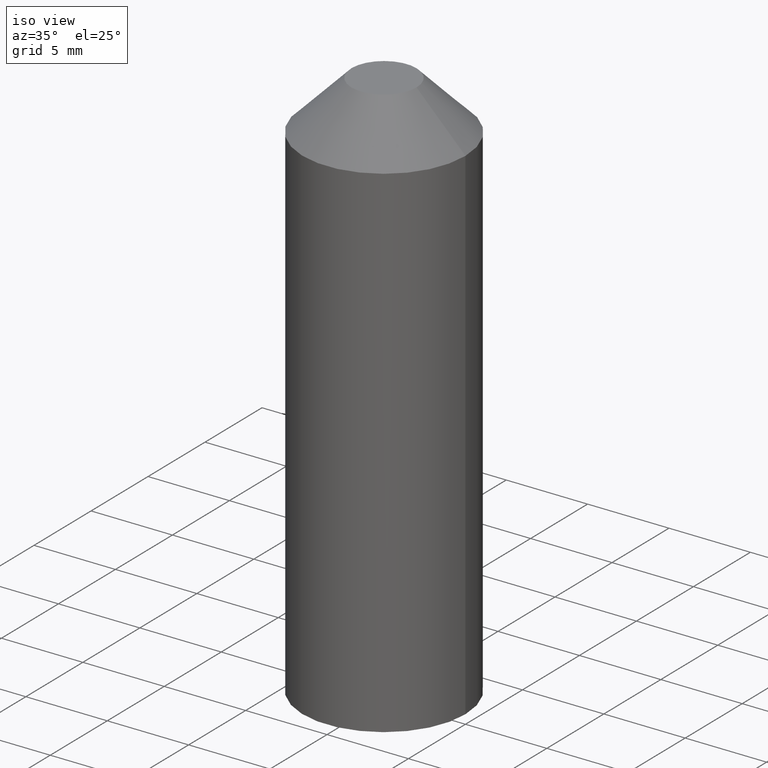
[diagram: clean part render]
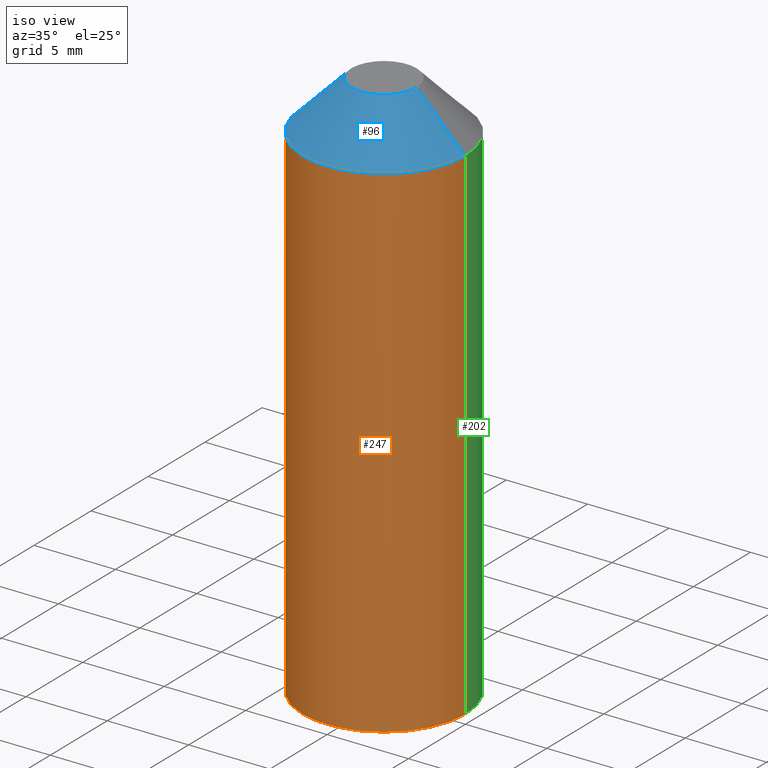
[diagram: same view with three faces highlighted in distinct colors, each labeled with its STEP entity id]
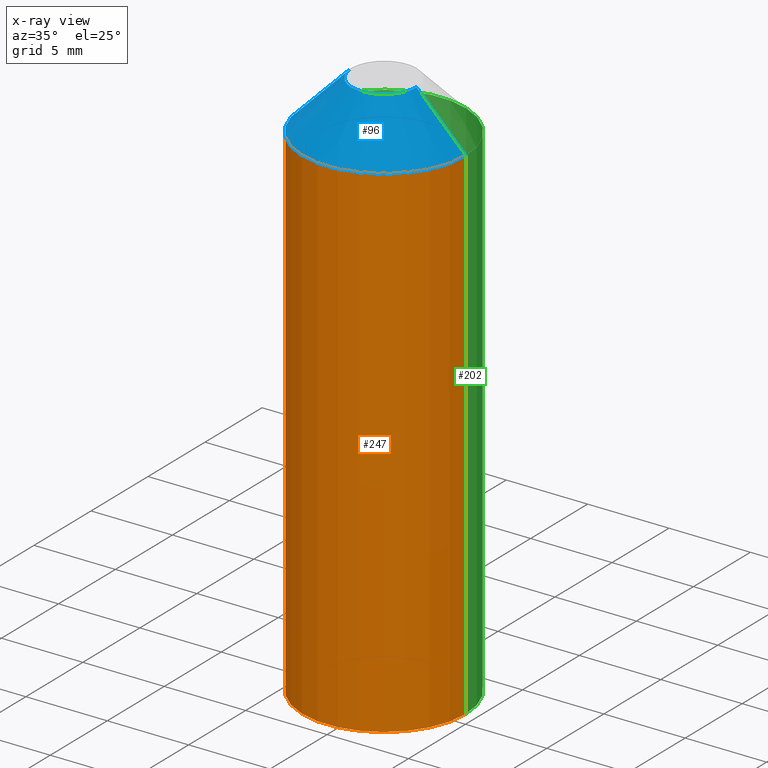
[diagram: x-ray of the same camera — body ghosted, the three highlighted faces saturated]
A machine part, iso view with three faces highlighted in distinct colors.
The next image is the same camera in x-ray (body ghosted, the three faces saturated) — at least one of them is partly hidden behind the body in this view.
Their STEP definitions:

[orange] entity #247 — the highlighted cylindrical surface (partial cylindrical patch) has radius 5 mm, axis along (0, 0, 1).
#1 = ORIENTED_EDGE ( 'NONE', *, *, #175, .F. ) ;
#2 = EDGE_CURVE ( 'NONE', #95, #160, #85, .T. ) ;
#15 = ORIENTED_EDGE ( 'NONE', *, *, #169, .T. ) ;
#18 = VECTOR ( 'NONE', #114, 1000.000000000000000 ) ;
#19 = CYLINDRICAL_SURFACE ( 'NONE', #148, 4.999999999999900500 ) ;
#24 = DIRECTION ( 'NONE',  ( 1.000000000000000000, 0.0000000000000000000, 0.0000000000000000000 ) ) ;
#25 = CIRCLE ( 'NONE', #164, 4.999999999999900500 ) ;
#26 = LINE ( 'NONE', #161, #18 ) ;
#33 = EDGE_CURVE ( 'NONE', #68, #160, #25, .T. ) ;
#40 = CARTESIAN_POINT ( 'NONE',  ( -4.999999999999801000, 6.123233995736644000E-016, -30.00000000000000000 ) ) ;
#59 = CARTESIAN_POINT ( 'NONE',  ( 5.000000000000000000, 0.0000000000000000000, -30.00000000000000000 ) ) ;
#64 = CARTESIAN_POINT ( 'NONE',  ( 5.000000000000000000, 0.0000000000000000000, 1.000000000000285300 ) ) ;
#68 = VERTEX_POINT ( 'NONE', #118 ) ;
#76 = CARTESIAN_POINT ( 'NONE',  ( 9.947598300641398800E-014, 0.0000000000000000000, -30.00000000000000000 ) ) ;
#80 = VECTOR ( 'NONE', #217, 1000.000000000000000 ) ;
#85 = LINE ( 'NONE', #59, #80 ) ;
#92 = CIRCLE ( 'NONE', #273, 4.999999999999900500 ) ;
#95 = VERTEX_POINT ( 'NONE', #302 ) ;
#114 = DIRECTION ( 'NONE',  ( 0.0000000000000000000, 0.0000000000000000000, 1.000000000000000000 ) ) ;
#118 = CARTESIAN_POINT ( 'NONE',  ( -4.999999999999801000, 6.123233995736644000E-016, 1.000000000000285300 ) ) ;
#133 = DIRECTION ( 'NONE',  ( 0.0000000000000000000, 0.0000000000000000000, 1.000000000000000000 ) ) ;
#139 = EDGE_LOOP ( 'NONE', ( #1, #15, #269, #280 ) ) ;
#148 = AXIS2_PLACEMENT_3D ( 'NONE', #76, #300, #210 ) ;
#160 = VERTEX_POINT ( 'NONE', #64 ) ;
#161 = CARTESIAN_POINT ( 'NONE',  ( -4.999999999999801000, 6.123233995736644000E-016, -30.00000000000000000 ) ) ;
#164 = AXIS2_PLACEMENT_3D ( 'NONE', #183, #194, #24 ) ;
#169 = EDGE_CURVE ( 'NONE', #214, #95, #92, .T. ) ;
#175 = EDGE_CURVE ( 'NONE', #214, #68, #26, .T. ) ;
#180 = FACE_OUTER_BOUND ( 'NONE', #139, .T. ) ;
#183 = CARTESIAN_POINT ( 'NONE',  ( 9.947598300641398800E-014, 0.0000000000000000000, 1.000000000000285300 ) ) ;
#194 = DIRECTION ( 'NONE',  ( 0.0000000000000000000, 0.0000000000000000000, 1.000000000000000000 ) ) ;
#210 = DIRECTION ( 'NONE',  ( 1.000000000000000000, 0.0000000000000000000, 0.0000000000000000000 ) ) ;
#214 = VERTEX_POINT ( 'NONE', #40 ) ;
#217 = DIRECTION ( 'NONE',  ( 0.0000000000000000000, 0.0000000000000000000, 1.000000000000000000 ) ) ;
#247 = ADVANCED_FACE ( 'NONE', ( #180 ), #19, .T. ) ;
#269 = ORIENTED_EDGE ( 'NONE', *, *, #2, .T. ) ;
#273 = AXIS2_PLACEMENT_3D ( 'NONE', #298, #133, #277 ) ;
#277 = DIRECTION ( 'NONE',  ( 1.000000000000000000, 0.0000000000000000000, 0.0000000000000000000 ) ) ;
#280 = ORIENTED_EDGE ( 'NONE', *, *, #33, .F. ) ;
#298 = CARTESIAN_POINT ( 'NONE',  ( 9.947598300641398800E-014, 0.0000000000000000000, -30.00000000000000000 ) ) ;
#300 = DIRECTION ( 'NONE',  ( 0.0000000000000000000, 0.0000000000000000000, 1.000000000000000000 ) ) ;
#302 = CARTESIAN_POINT ( 'NONE',  ( 5.000000000000000000, 0.0000000000000000000, -30.00000000000000000 ) ) ;

[blue] entity #96 — the highlighted conical surface has half-angle 45 deg.
#10 = CARTESIAN_POINT ( 'NONE',  ( 1.999999999999999100, 4.286263797015613800E-016, 4.000000000000287800 ) ) ;
#11 = CIRCLE ( 'NONE', #259, 1.999999999999899900 ) ;
#24 = DIRECTION ( 'NONE',  ( 1.000000000000000000, 0.0000000000000000000, 0.0000000000000000000 ) ) ;
#25 = CIRCLE ( 'NONE', #164, 4.999999999999900500 ) ;
#27 = CONICAL_SURFACE ( 'NONE', #218, 1.999999999999899900, 0.7853981633974479500 ) ;
#32 = CARTESIAN_POINT ( 'NONE',  ( 1.999999999999999100, 2.449293598294584100E-016, 4.000000000000287800 ) ) ;
#33 = EDGE_CURVE ( 'NONE', #68, #160, #25, .T. ) ;
#37 = ORIENTED_EDGE ( 'NONE', *, *, #116, .F. ) ;
#60 = ORIENTED_EDGE ( 'NONE', *, *, #267, .F. ) ;
#63 = DIRECTION ( 'NONE',  ( -0.7071067811865472400, 0.0000000000000000000, -0.7071067811865479100 ) ) ;
#64 = CARTESIAN_POINT ( 'NONE',  ( 5.000000000000000000, 0.0000000000000000000, 1.000000000000285300 ) ) ;
#67 = ORIENTED_EDGE ( 'NONE', *, *, #33, .T. ) ;
#68 = VERTEX_POINT ( 'NONE', #118 ) ;
#83 = DIRECTION ( 'NONE',  ( -0.0000000000000000000, -0.0000000000000000000, -1.000000000000000000 ) ) ;
#84 = CARTESIAN_POINT ( 'NONE',  ( 9.947598300641398800E-014, 0.0000000000000000000, 4.000000000000287800 ) ) ;
#96 = ADVANCED_FACE ( 'NONE', ( #243 ), #27, .T. ) ;
#107 = DIRECTION ( 'NONE',  ( 1.000000000000000000, 0.0000000000000000000, 0.0000000000000000000 ) ) ;
#116 = EDGE_CURVE ( 'NONE', #156, #257, #11, .T. ) ;
#118 = CARTESIAN_POINT ( 'NONE',  ( -4.999999999999801000, 6.123233995736644000E-016, 1.000000000000285300 ) ) ;
#120 = LINE ( 'NONE', #32, #264 ) ;
#128 = CARTESIAN_POINT ( 'NONE',  ( -1.999999999999800600, 0.0000000000000000000, 4.000000000000287800 ) ) ;
#156 = VERTEX_POINT ( 'NONE', #233 ) ;
#160 = VERTEX_POINT ( 'NONE', #64 ) ;
#164 = AXIS2_PLACEMENT_3D ( 'NONE', #183, #194, #24 ) ;
#183 = CARTESIAN_POINT ( 'NONE',  ( 9.947598300641398800E-014, 0.0000000000000000000, 1.000000000000285300 ) ) ;
#190 = DIRECTION ( 'NONE',  ( -1.000000000000000000, 0.0000000000000000000, 0.0000000000000000000 ) ) ;
#194 = DIRECTION ( 'NONE',  ( 0.0000000000000000000, 0.0000000000000000000, 1.000000000000000000 ) ) ;
#215 = DIRECTION ( 'NONE',  ( 0.0000000000000000000, 0.0000000000000000000, 1.000000000000000000 ) ) ;
#218 = AXIS2_PLACEMENT_3D ( 'NONE', #301, #83, #190 ) ;
#233 = CARTESIAN_POINT ( 'NONE',  ( -1.999999999999800600, 0.0000000000000000000, 4.000000000000287800 ) ) ;
#241 = EDGE_CURVE ( 'NONE', #156, #68, #244, .T. ) ;
#243 = FACE_OUTER_BOUND ( 'NONE', #292, .T. ) ;
#244 = LINE ( 'NONE', #128, #252 ) ;
#252 = VECTOR ( 'NONE', #63, 999.9999999999998900 ) ;
#257 = VERTEX_POINT ( 'NONE', #10 ) ;
#259 = AXIS2_PLACEMENT_3D ( 'NONE', #84, #215, #107 ) ;
#261 = ORIENTED_EDGE ( 'NONE', *, *, #241, .T. ) ;
#264 = VECTOR ( 'NONE', #295, 999.9999999999998900 ) ;
#267 = EDGE_CURVE ( 'NONE', #257, #160, #120, .T. ) ;
#292 = EDGE_LOOP ( 'NONE', ( #60, #37, #261, #67 ) ) ;
#295 = DIRECTION ( 'NONE',  ( 0.7071067811865472400, 8.659560562354930400E-017, -0.7071067811865479100 ) ) ;
#301 = CARTESIAN_POINT ( 'NONE',  ( 9.947598300641398800E-014, 0.0000000000000000000, 4.000000000000287800 ) ) ;

[green] entity #202 — the highlighted cylindrical surface (partial cylindrical patch) has radius 5 mm, axis along (0, 0, 1).
#2 = EDGE_CURVE ( 'NONE', #95, #160, #85, .T. ) ;
#18 = VECTOR ( 'NONE', #114, 1000.000000000000000 ) ;
#26 = LINE ( 'NONE', #161, #18 ) ;
#40 = CARTESIAN_POINT ( 'NONE',  ( -4.999999999999801000, 6.123233995736644000E-016, -30.00000000000000000 ) ) ;
#59 = CARTESIAN_POINT ( 'NONE',  ( 5.000000000000000000, 0.0000000000000000000, -30.00000000000000000 ) ) ;
#62 = AXIS2_PLACEMENT_3D ( 'NONE', #157, #189, #294 ) ;
#64 = CARTESIAN_POINT ( 'NONE',  ( 5.000000000000000000, 0.0000000000000000000, 1.000000000000285300 ) ) ;
#68 = VERTEX_POINT ( 'NONE', #118 ) ;
#78 = AXIS2_PLACEMENT_3D ( 'NONE', #239, #87, #274 ) ;
#79 = DIRECTION ( 'NONE',  ( 0.0000000000000000000, 0.0000000000000000000, 1.000000000000000000 ) ) ;
#80 = VECTOR ( 'NONE', #217, 1000.000000000000000 ) ;
#85 = LINE ( 'NONE', #59, #80 ) ;
#87 = DIRECTION ( 'NONE',  ( 0.0000000000000000000, 0.0000000000000000000, 1.000000000000000000 ) ) ;
#95 = VERTEX_POINT ( 'NONE', #302 ) ;
#104 = EDGE_CURVE ( 'NONE', #160, #68, #230, .T. ) ;
#106 = DIRECTION ( 'NONE',  ( 1.000000000000000000, 0.0000000000000000000, 0.0000000000000000000 ) ) ;
#114 = DIRECTION ( 'NONE',  ( 0.0000000000000000000, 0.0000000000000000000, 1.000000000000000000 ) ) ;
#118 = CARTESIAN_POINT ( 'NONE',  ( -4.999999999999801000, 6.123233995736644000E-016, 1.000000000000285300 ) ) ;
#145 = CIRCLE ( 'NONE', #62, 4.999999999999900500 ) ;
#151 = FACE_OUTER_BOUND ( 'NONE', #255, .T. ) ;
#154 = ORIENTED_EDGE ( 'NONE', *, *, #2, .F. ) ;
#157 = CARTESIAN_POINT ( 'NONE',  ( 9.947598300641398800E-014, 0.0000000000000000000, -30.00000000000000000 ) ) ;
#160 = VERTEX_POINT ( 'NONE', #64 ) ;
#161 = CARTESIAN_POINT ( 'NONE',  ( -4.999999999999801000, 6.123233995736644000E-016, -30.00000000000000000 ) ) ;
#167 = ORIENTED_EDGE ( 'NONE', *, *, #175, .T. ) ;
#175 = EDGE_CURVE ( 'NONE', #214, #68, #26, .T. ) ;
#189 = DIRECTION ( 'NONE',  ( 0.0000000000000000000, 0.0000000000000000000, 1.000000000000000000 ) ) ;
#202 = ADVANCED_FACE ( 'NONE', ( #151 ), #306, .T. ) ;
#209 = EDGE_CURVE ( 'NONE', #95, #214, #145, .T. ) ;
#211 = CARTESIAN_POINT ( 'NONE',  ( 9.947598300641398800E-014, 0.0000000000000000000, 1.000000000000285300 ) ) ;
#214 = VERTEX_POINT ( 'NONE', #40 ) ;
#217 = DIRECTION ( 'NONE',  ( 0.0000000000000000000, 0.0000000000000000000, 1.000000000000000000 ) ) ;
#221 = ORIENTED_EDGE ( 'NONE', *, *, #209, .T. ) ;
#230 = CIRCLE ( 'NONE', #231, 4.999999999999900500 ) ;
#231 = AXIS2_PLACEMENT_3D ( 'NONE', #211, #79, #106 ) ;
#239 = CARTESIAN_POINT ( 'NONE',  ( 9.947598300641398800E-014, 0.0000000000000000000, -30.00000000000000000 ) ) ;
#255 = EDGE_LOOP ( 'NONE', ( #221, #167, #290, #154 ) ) ;
#274 = DIRECTION ( 'NONE',  ( 1.000000000000000000, 0.0000000000000000000, 0.0000000000000000000 ) ) ;
#290 = ORIENTED_EDGE ( 'NONE', *, *, #104, .F. ) ;
#294 = DIRECTION ( 'NONE',  ( 1.000000000000000000, 0.0000000000000000000, 0.0000000000000000000 ) ) ;
#302 = CARTESIAN_POINT ( 'NONE',  ( 5.000000000000000000, 0.0000000000000000000, -30.00000000000000000 ) ) ;
#306 = CYLINDRICAL_SURFACE ( 'NONE', #78, 4.999999999999900500 ) ;